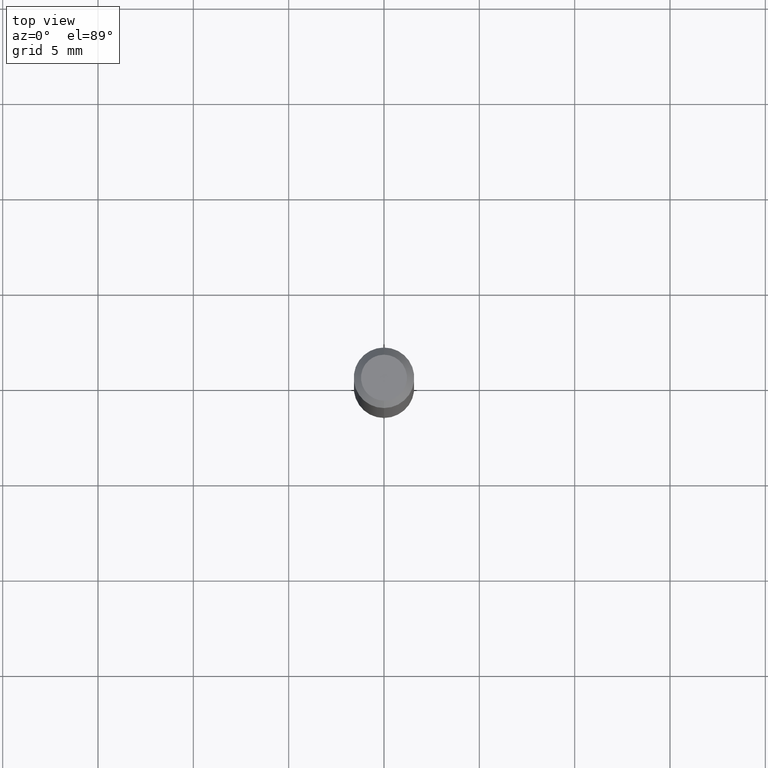
[diagram: clean part render]
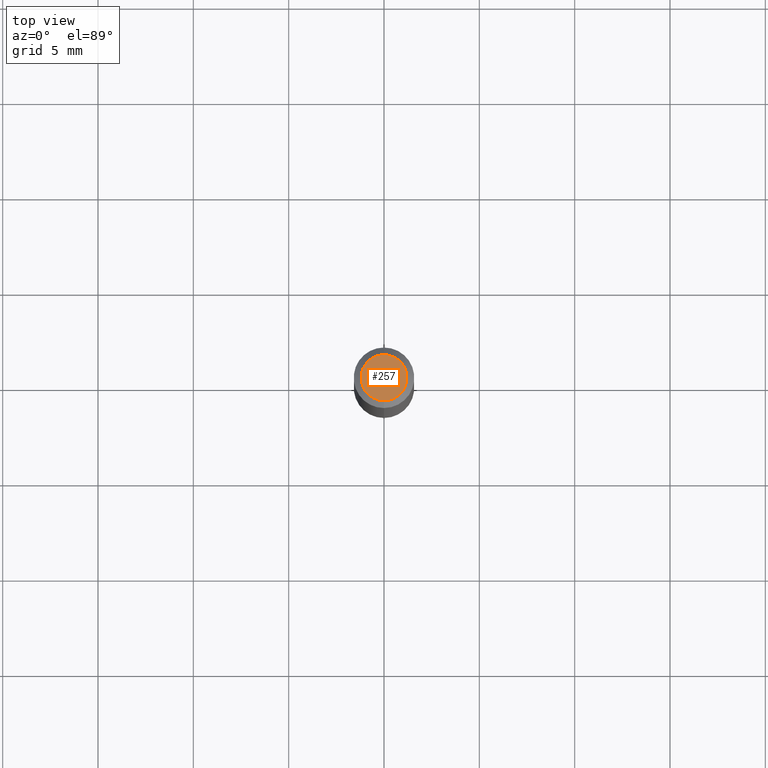
[diagram: same view with one face highlighted and labeled with its STEP entity id]
A machine part, top view. The second image highlights one B-rep face of the part: STEP entity #257.
In plain terms, the highlighted planar face has unit normal (0, -0, -1).
Its self-contained STEP definition (entity closure, byte-faithful):
#26 = DIRECTION ( 'NONE',  ( 2.445457374609908147E-29, -3.491497709509517108E-15, -1.000000000000000000 ) ) ;
#29 = CARTESIAN_POINT ( 'NONE',  ( 3.316907271900976096E-16, 0.04749999999999999362, -1.702759121942912783E-16 ) ) ;
#69 = VERTEX_POINT ( 'NONE', #391 ) ;
#72 = CARTESIAN_POINT ( 'NONE',  ( 2.166563228332078475E-46, -3.093307054855400390E-32, -8.859541985178464573E-18 ) ) ;
#79 = CIRCLE ( 'NONE', #259, 0.04749999999999999362 ) ;
#93 = CARTESIAN_POINT ( 'NONE',  ( -3.773273898774340269E-16, -0.04749999999999999362, 1.569865992165235968E-16 ) ) ;
#101 = FACE_OUTER_BOUND ( 'NONE', #502, .T. ) ;
#113 = DIRECTION ( 'NONE',  ( -2.445457374609908707E-29, 3.491497709509516713E-15, 1.000000000000000000 ) ) ;
#131 = AXIS2_PLACEMENT_3D ( 'NONE', #464, #113, #321 ) ;
#237 = DIRECTION ( 'NONE',  ( -6.982962677686266711E-15, -1.000000000000000000, 3.491497709509517108E-15 ) ) ;
#257 = ADVANCED_FACE ( 'NONE', ( #101 ), #382, .F. ) ;
#259 = AXIS2_PLACEMENT_3D ( 'NONE', #72, #363, #237 ) ;
#263 = ORIENTED_EDGE ( 'NONE', *, *, #364, .T. ) ;
#321 = DIRECTION ( 'NONE',  ( -6.982962677686266711E-15, -1.000000000000000000, 3.491497709509517108E-15 ) ) ;
#346 = DIRECTION ( 'NONE',  ( 6.982962677686265922E-15, 1.000000000000000000, -3.491497709509517108E-15 ) ) ;
#363 = DIRECTION ( 'NONE',  ( -2.445457374609908707E-29, 3.491497709509516713E-15, 1.000000000000000000 ) ) ;
#364 = EDGE_CURVE ( 'NONE', #69, #485, #417, .T. ) ;
#367 = AXIS2_PLACEMENT_3D ( 'NONE', #29, #26, #346 ) ;
#374 = EDGE_CURVE ( 'NONE', #485, #69, #79, .T. ) ;
#382 = PLANE ( 'NONE',  #367 ) ;
#391 = CARTESIAN_POINT ( 'NONE',  ( 3.840629472727447874E-16, 0.04749999999999999362, -1.747056831868805136E-16 ) ) ;
#414 = ORIENTED_EDGE ( 'NONE', *, *, #374, .T. ) ;
#417 = CIRCLE ( 'NONE', #131, 0.04749999999999999362 ) ;
#464 = CARTESIAN_POINT ( 'NONE',  ( 2.166563228332078475E-46, -3.093307054855400390E-32, -8.859541985178464573E-18 ) ) ;
#485 = VERTEX_POINT ( 'NONE', #93 ) ;
#502 = EDGE_LOOP ( 'NONE', ( #263, #414 ) ) ;